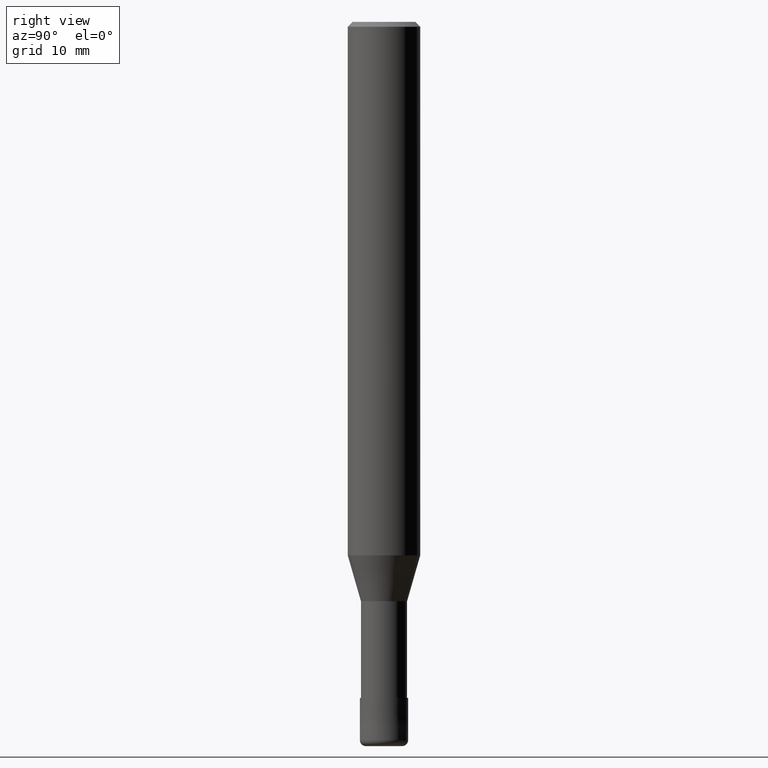
[diagram: clean part render]
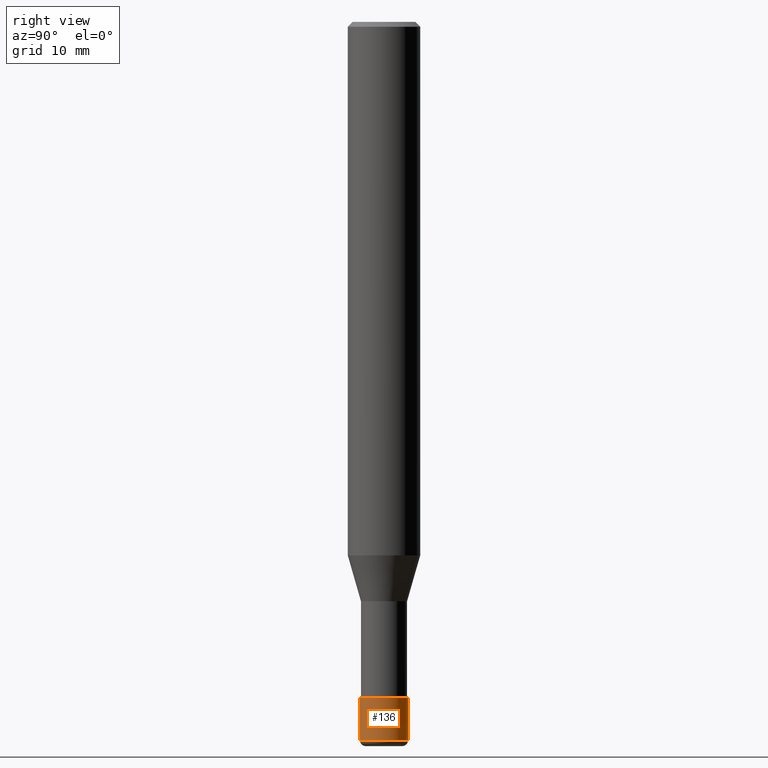
[diagram: same view with one face highlighted and labeled with its STEP entity id]
A machine part, right view. The second image highlights one B-rep face of the part: STEP entity #136.
In plain terms, the highlighted conical surface has half-angle 0.002 deg.
Its self-contained STEP definition (entity closure, byte-faithful):
#108=EDGE_CURVE('',#150,#116,#262,.T.);
#116=VERTEX_POINT('',#271);
#134=VERTEX_POINT('',#290);
#136=ADVANCED_FACE('',(#292),#293,.T.);
#150=VERTEX_POINT('',#309);
#166=EDGE_CURVE('',#150,#178,#327,.T.);
#178=VERTEX_POINT('',#340);
#206=EDGE_CURVE('',#178,#134,#371,.T.);
#212=EDGE_CURVE('',#134,#116,#377,.T.);
#262=CIRCLE('',#428,1.9999);
#271=CARTESIAN_POINT('',(2.44909024700937E-016,-1.9999,-56.0));
#290=CARTESIAN_POINT('',(2.44921270764475E-016,-2.0,-59.5));
#292=FACE_OUTER_BOUND('',#464,.T.);
#293=CONICAL_SURFACE('',#465,1.99995,2.85714285636509E-005);
#309=CARTESIAN_POINT('',(0.0,1.9999,-56.0));
#327=LINE('',#506,#507);
#340=CARTESIAN_POINT('',(0.0,2.0,-59.5));
#371=CIRCLE('',#563,2.0);
#377=LINE('',#572,#573);
#428=AXIS2_PLACEMENT_3D('',#620,#621,#622);
#464=EDGE_LOOP('',(#651,#652,#653,#654));
#465=AXIS2_PLACEMENT_3D('',#655,#656,#657);
#506=CARTESIAN_POINT('',(-2.44915147732706E-016,1.99995,-57.75));
#507=VECTOR('',#705,1.0);
#563=AXIS2_PLACEMENT_3D('',#758,#759,#760);
#572=CARTESIAN_POINT('',(2.44915147732706E-016,-1.99995,-57.75));
#573=VECTOR('',#762,1.0);
#620=CARTESIAN_POINT('',(0.0,0.0,-56.0));
#621=DIRECTION('',(0.0,0.0,-1.0));
#622=DIRECTION('',(0.0,1.0,0.0));
#651=ORIENTED_EDGE('',*,*,#166,.F.);
#652=ORIENTED_EDGE('',*,*,#108,.T.);
#653=ORIENTED_EDGE('',*,*,#212,.F.);
#654=ORIENTED_EDGE('',*,*,#206,.F.);
#655=CARTESIAN_POINT('',(0.0,0.0,-57.75));
#656=DIRECTION('',(0.0,-0.0,-1.0));
#657=DIRECTION('',(0.0,1.0,0.0));
#705=DIRECTION('',(-3.49887529520687E-021,2.85714285597636E-005,-0.999999999591837));
#758=CARTESIAN_POINT('',(0.0,0.0,-59.5));
#759=DIRECTION('',(0.0,0.0,-1.0));
#760=DIRECTION('',(0.0,1.0,0.0));
#762=DIRECTION('',(-3.49887529520687E-021,2.85714285597636E-005,0.999999999591837));